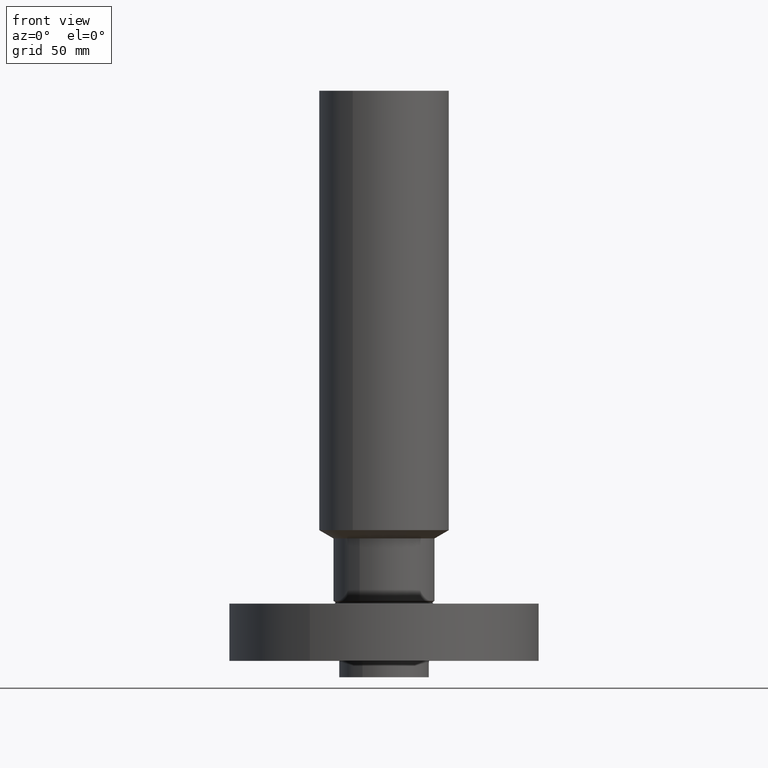
[diagram: clean part render]
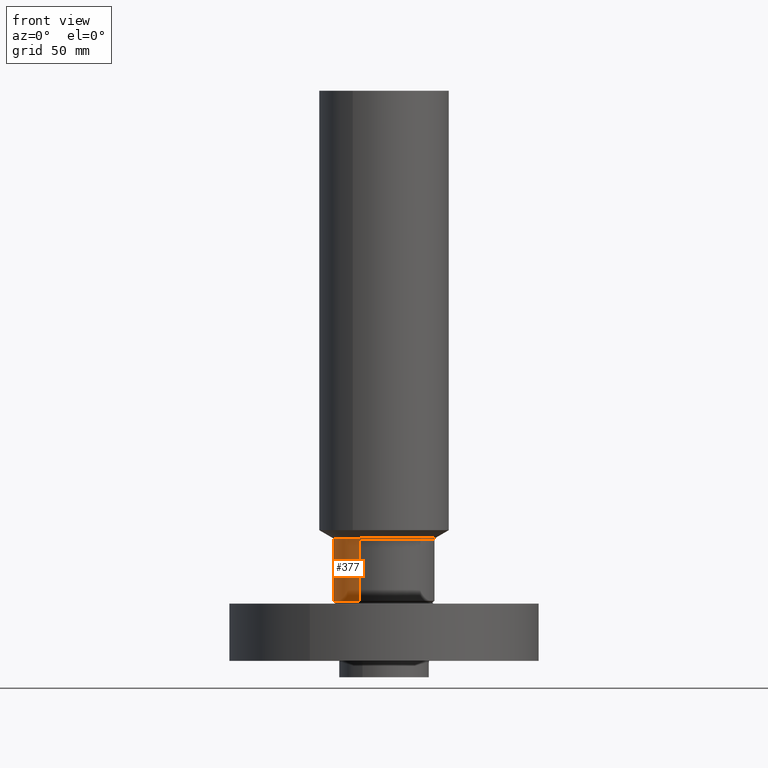
[diagram: same view with one face highlighted and labeled with its STEP entity id]
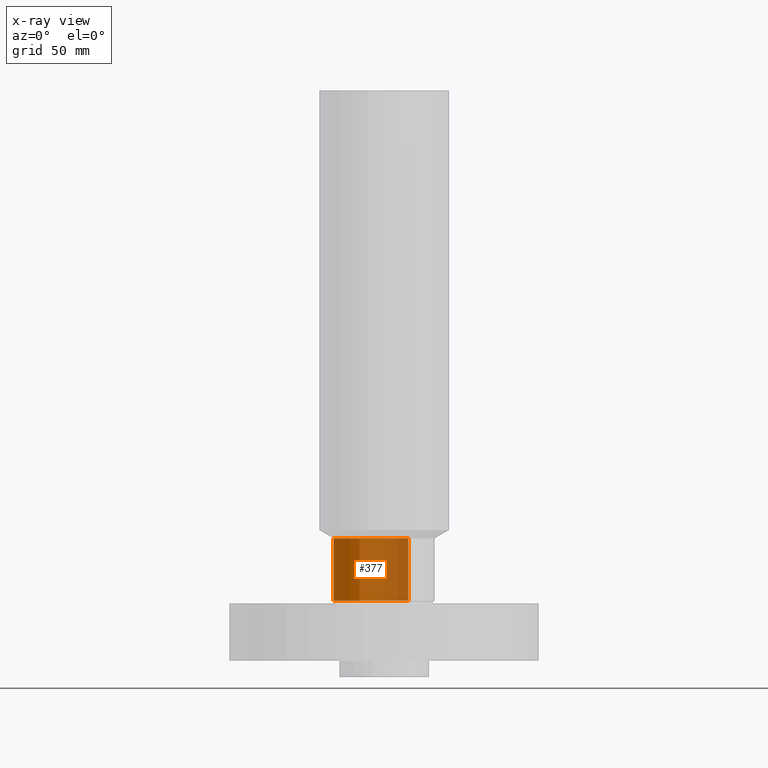
[diagram: x-ray of the same camera — body ghosted, the highlighted face saturated]
A machine part, front view. The second image highlights one B-rep face of the part: STEP entity #377.
The next image is the same camera in x-ray: the body ghosted, the highlighted face saturated — about 65% of this face is hidden behind the body in this view.
In plain terms, the highlighted cylindrical surface (partial cylindrical patch) has radius 19.812 mm, axis along (0, 0, -1).
Its self-contained STEP definition (entity closure, byte-faithful):
#325=AXIS2_PLACEMENT_3D('Circle Axis2P3D',#323,#324,$) ;
#338=AXIS2_PLACEMENT_3D('Cylinder Axis2P3D',#335,#336,#337) ;
#368=AXIS2_PLACEMENT_3D('Circle Axis2P3D',#366,#367,$) ;
#301=CARTESIAN_POINT('Vertex',(0.373951920113,0.684514398277,0.920980762117)) ;
#308=CARTESIAN_POINT('Vertex',(-0.373951920113,-0.684514398277,0.920980762117)) ;
#323=CARTESIAN_POINT('Axis2P3D Location',(0.,0.,0.920980762117)) ;
#335=CARTESIAN_POINT('Axis2P3D Location',(0.,0.,4.25000000002)) ;
#340=CARTESIAN_POINT('Line Origine',(0.373951920113,0.684514398277,1.40049038106)) ;
#344=CARTESIAN_POINT('Vertex',(0.373951920113,0.684514398277,1.88000000001)) ;
#351=CARTESIAN_POINT('Vertex',(-0.373951920113,-0.684514398277,1.88000000001)) ;
#354=CARTESIAN_POINT('Line Origine',(-0.373951920113,-0.684514398277,1.40049038106)) ;
#366=CARTESIAN_POINT('Axis2P3D Location',(0.,0.,1.88000000001)) ;
#324=DIRECTION('Axis2P3D Direction',(-0.,0.,0.0393700787402)) ;
#336=DIRECTION('Axis2P3D Direction',(0.,0.,-0.0393700787402)) ;
#337=DIRECTION('Axis2P3D XDirection',(-0.0188750212049,-0.0345504945626,0.)) ;
#341=DIRECTION('Vector Direction',(0.,0.,-0.0393700787402)) ;
#355=DIRECTION('Vector Direction',(0.,0.,-0.0393700787402)) ;
#367=DIRECTION('Axis2P3D Direction',(0.,0.,-0.0393700787402)) ;
#342=VECTOR('Line Direction',#341,0.0393700787402) ;
#356=VECTOR('Line Direction',#355,0.0393700787402) ;
#372=ORIENTED_EDGE('',*,*,#327,.F.) ;
#373=ORIENTED_EDGE('',*,*,#358,.T.) ;
#374=ORIENTED_EDGE('',*,*,#370,.T.) ;
#375=ORIENTED_EDGE('',*,*,#346,.F.) ;
#377=ADVANCED_FACE('PartBody',(#376),#339,.T.) ;
#326=CIRCLE('generated circle',#325,0.780000000003) ;
#369=CIRCLE('generated circle',#368,0.780000000003) ;
#339=CYLINDRICAL_SURFACE('generated cylinder',#338,0.780000000003) ;
#327=EDGE_CURVE('',#309,#302,#326,.F.) ;
#346=EDGE_CURVE('',#302,#345,#343,.F.) ;
#358=EDGE_CURVE('',#309,#352,#357,.F.) ;
#370=EDGE_CURVE('',#352,#345,#369,.T.) ;
#371=EDGE_LOOP('',(#372,#373,#374,#375)) ;
#376=FACE_OUTER_BOUND('',#371,.T.) ;
#343=LINE('Line',#340,#342) ;
#357=LINE('Line',#354,#356) ;
#302=VERTEX_POINT('',#301) ;
#309=VERTEX_POINT('',#308) ;
#345=VERTEX_POINT('',#344) ;
#352=VERTEX_POINT('',#351) ;